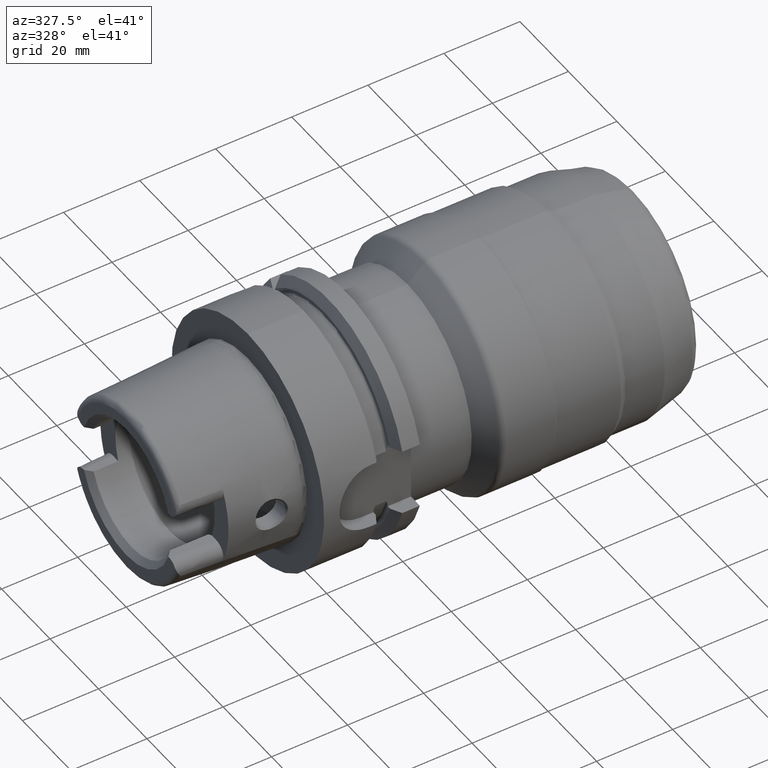
[diagram: clean part render]
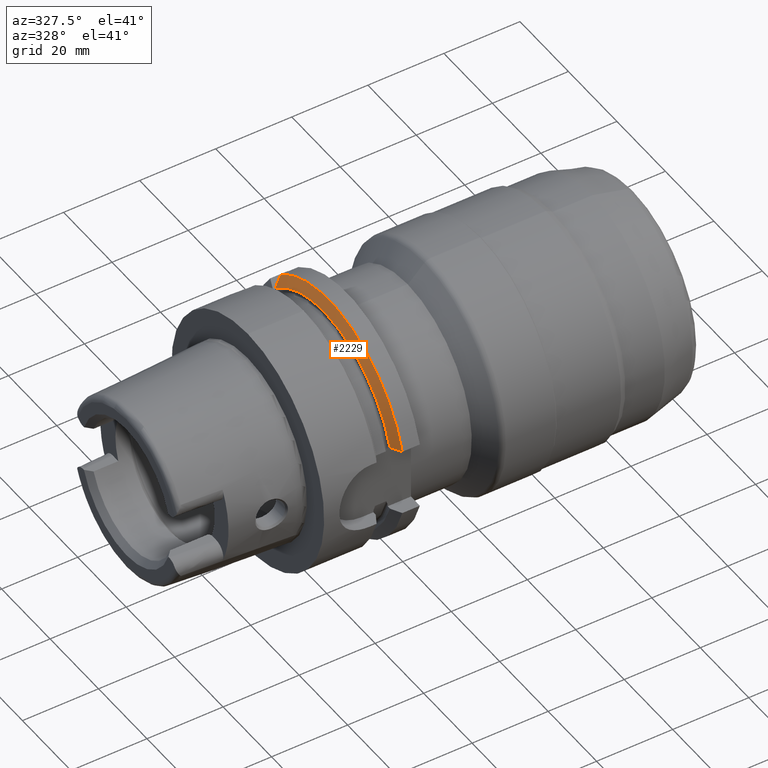
[diagram: same view with one face highlighted and labeled with its STEP entity id]
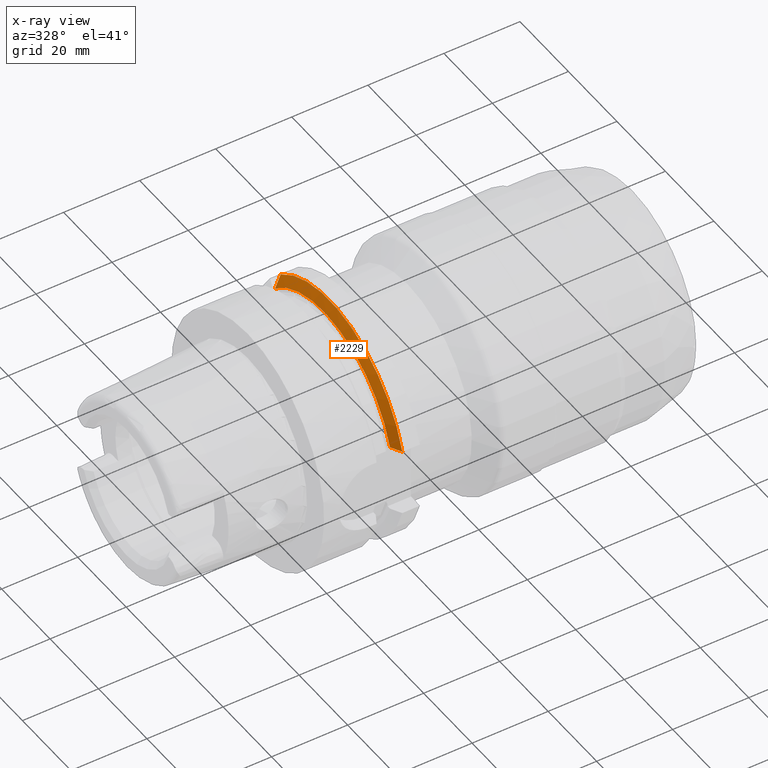
[diagram: x-ray of the same camera — body ghosted, the highlighted face saturated]
A machine part, auxiliary view. The second image highlights one B-rep face of the part: STEP entity #2229.
The next image is the same camera in x-ray: the body ghosted, the highlighted face saturated — about 0% of this face is hidden behind the body in this view.
In plain terms, the highlighted conical surface has half-angle 60 deg.
Its self-contained STEP definition (entity closure, byte-faithful):
#17 = ORIENTED_EDGE ( 'NONE', *, *, #2877, .T. ) ;
#54 = FACE_OUTER_BOUND ( 'NONE', #3138, .T. ) ;
#136 = CIRCLE ( 'NONE', #1475, 28.89759526419163600 ) ;
#165 = CARTESIAN_POINT ( 'NONE',  ( 51.87500000000000700, 19.99999999999999300, 20.85835592881258500 ) ) ;
#174 = CARTESIAN_POINT ( 'NONE',  ( 52.87511592117055400, -29.27891428885711300, 8.999999999999989300 ) ) ;
#239 = CONICAL_SURFACE ( 'NONE', #835, 31.50000000000000000, 1.047197551196602300 ) ;
#449 = B_SPLINE_CURVE_WITH_KNOTS ( 'NONE', 3,
 ( #3338, #3326, #174, #2164 ),
 .UNSPECIFIED., .F., .F.,
 ( 4, 4 ),
 ( 0.007807982590079765200, 0.01092105998926152000 ),
 .UNSPECIFIED. ) ;
#718 = CARTESIAN_POINT ( 'NONE',  ( 53.37749907475930700, 19.99999999999999300, 24.33618704727593900 ) ) ;
#808 = DIRECTION ( 'NONE',  ( -1.000000000000000000, -0.0000000000000000000, -0.0000000000000000000 ) ) ;
#835 = AXIS2_PLACEMENT_3D ( 'NONE', #2870, #2272, #2110 ) ;
#945 = CARTESIAN_POINT ( 'NONE',  ( 53.37749907475930700, -30.18691769624716400, 8.999999999999989300 ) ) ;
#1082 = CIRCLE ( 'NONE', #2910, 31.50000000000000000 ) ;
#1475 = AXIS2_PLACEMENT_3D ( 'NONE', #3280, #2376, #3742 ) ;
#1477 = EDGE_CURVE ( 'NONE', #3046, #2590, #449, .T. ) ;
#1488 = VERTEX_POINT ( 'NONE', #165 ) ;
#1588 = ORIENTED_EDGE ( 'NONE', *, *, #1477, .T. ) ;
#1602 = CARTESIAN_POINT ( 'NONE',  ( 51.87500000000000700, 19.99999999999999300, 20.85835592881258500 ) ) ;
#1899 = B_SPLINE_CURVE_WITH_KNOTS ( 'NONE', 3,
 ( #718, #2754, #3049, #1602 ),
 .UNSPECIFIED., .F., .F.,
 ( 4, 4 ),
 ( 0.01824833523019054800, 0.02203419682372207900 ),
 .UNSPECIFIED. ) ;
#2110 = DIRECTION ( 'NONE',  ( 0.0000000000000000000, 0.0000000000000000000, -1.000000000000000000 ) ) ;
#2134 = VERTEX_POINT ( 'NONE', #3730 ) ;
#2164 = CARTESIAN_POINT ( 'NONE',  ( 53.37749907475930700, -30.18691769624716400, 8.999999999999989300 ) ) ;
#2188 = EDGE_CURVE ( 'NONE', #3046, #1488, #136, .T. ) ;
#2229 = ADVANCED_FACE ( 'NONE', ( #54 ), #239, .T. ) ;
#2272 = DIRECTION ( 'NONE',  ( 1.000000000000000000, 0.0000000000000000000, 0.0000000000000000000 ) ) ;
#2376 = DIRECTION ( 'NONE',  ( -1.000000000000000000, -0.0000000000000000000, -0.0000000000000000000 ) ) ;
#2394 = ORIENTED_EDGE ( 'NONE', *, *, #3504, .T. ) ;
#2492 = CARTESIAN_POINT ( 'NONE',  ( 53.37749907475930700, 0.0000000000000000000, 0.0000000000000000000 ) ) ;
#2590 = VERTEX_POINT ( 'NONE', #945 ) ;
#2754 = CARTESIAN_POINT ( 'NONE',  ( 52.86321472846904600, 19.99999999999999300, 23.18320657458222200 ) ) ;
#2870 = CARTESIAN_POINT ( 'NONE',  ( 53.37749907475930700, 0.0000000000000000000, 0.0000000000000000000 ) ) ;
#2877 = EDGE_CURVE ( 'NONE', #2134, #1488, #1899, .T. ) ;
#2910 = AXIS2_PLACEMENT_3D ( 'NONE', #2492, #808, #3390 ) ;
#3046 = VERTEX_POINT ( 'NONE', #3688 ) ;
#3049 = CARTESIAN_POINT ( 'NONE',  ( 52.36056745704717500, 19.99999999999999300, 22.02353273184055700 ) ) ;
#3138 = EDGE_LOOP ( 'NONE', ( #2394, #17, #3238, #1588 ) ) ;
#3238 = ORIENTED_EDGE ( 'NONE', *, *, #2188, .F. ) ;
#3280 = CARTESIAN_POINT ( 'NONE',  ( 51.87500000000000700, 0.0000000000000000000, 0.0000000000000000000 ) ) ;
#3326 = CARTESIAN_POINT ( 'NONE',  ( 52.37413581659259200, -28.37013043721125200, 8.999999999999991100 ) ) ;
#3338 = CARTESIAN_POINT ( 'NONE',  ( 51.87500000000000700, -27.46035345826835800, 8.999999999999991100 ) ) ;
#3390 = DIRECTION ( 'NONE',  ( 0.0000000000000000000, 0.0000000000000000000, 1.000000000000000000 ) ) ;
#3504 = EDGE_CURVE ( 'NONE', #2590, #2134, #1082, .T. ) ;
#3688 = CARTESIAN_POINT ( 'NONE',  ( 51.87500000000000700, -27.46035345826835800, 8.999999999999991100 ) ) ;
#3730 = CARTESIAN_POINT ( 'NONE',  ( 53.37749907475930700, 19.99999999999999300, 24.33618704727593900 ) ) ;
#3742 = DIRECTION ( 'NONE',  ( 0.0000000000000000000, 0.0000000000000000000, 1.000000000000000000 ) ) ;